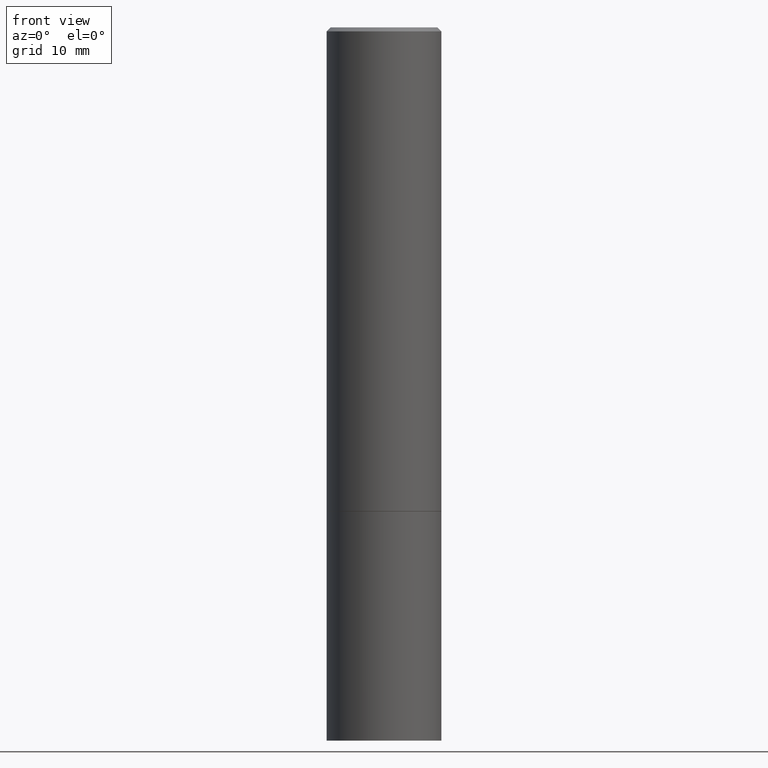
[diagram: clean part render]
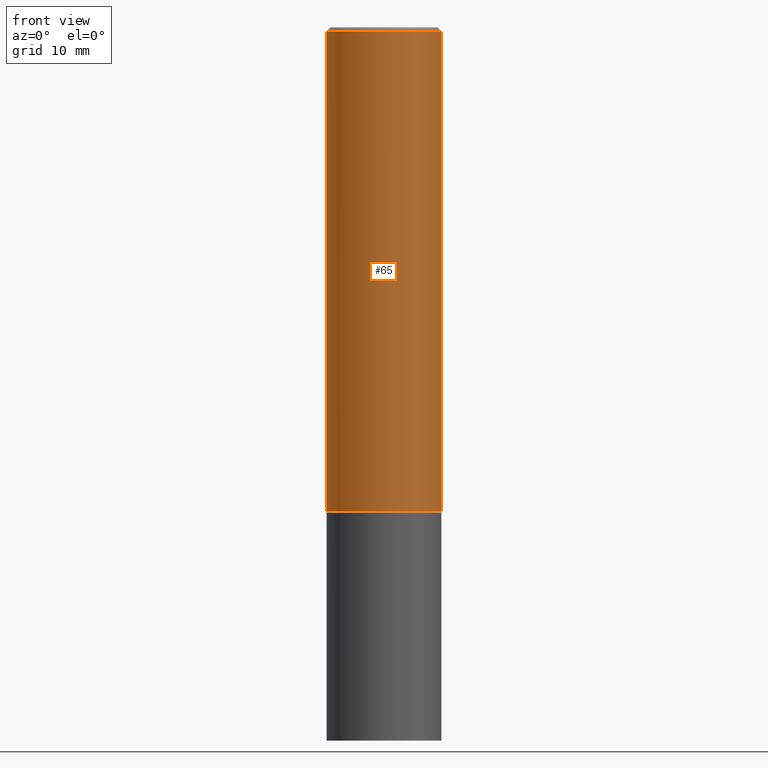
[diagram: same view with one face highlighted and labeled with its STEP entity id]
A machine part, front view. The second image highlights one B-rep face of the part: STEP entity #65.
In plain terms, the highlighted cylindrical surface (partial cylindrical patch) has radius 7.1437 mm, axis along (-0, 0, 1).
Its self-contained STEP definition (entity closure, byte-faithful):
#2 = DIRECTION ( 'NONE',  ( -2.445468806185136597E-29, 3.491481338843145583E-15, 1.000000000000000000 ) ) ;
#5 = DIRECTION ( 'NONE',  ( 1.000000000000000000, -6.982962677686268288E-15, 0.000000000000000000 ) ) ;
#13 = EDGE_CURVE ( 'NONE', #333, #43, #327, .T. ) ;
#43 = VERTEX_POINT ( 'NONE', #184 ) ;
#59 = CARTESIAN_POINT ( 'NONE',  ( 4.890937612370292426E-31, -6.982962677686317493E-17, -0.02000000000000007674 ) ) ;
#65 = ADVANCED_FACE ( 'NONE', ( #285 ), #145, .T. ) ;
#69 = EDGE_CURVE ( 'NONE', #333, #296, #84, .T. ) ;
#77 = ORIENTED_EDGE ( 'NONE', *, *, #13, .T. ) ;
#78 = CARTESIAN_POINT ( 'NONE',  ( 5.805542945883512693E-29, -8.288776698413625533E-15, -2.373999999999999222 ) ) ;
#81 = EDGE_CURVE ( 'NONE', #296, #129, #304, .T. ) ;
#84 = LINE ( 'NONE', #254, #121 ) ;
#89 = CARTESIAN_POINT ( 'NONE',  ( 0.2812499999999996114, -1.999344688650103789E-15, -0.02000000000000007674 ) ) ;
#110 = AXIS2_PLACEMENT_3D ( 'NONE', #59, #2, #5 ) ;
#121 = VECTOR ( 'NONE', #251, 39.37007874015748143 ) ;
#124 = AXIS2_PLACEMENT_3D ( 'NONE', #257, #281, #282 ) ;
#127 = ORIENTED_EDGE ( 'NONE', *, *, #69, .F. ) ;
#129 = VERTEX_POINT ( 'NONE', #89 ) ;
#145 = CYLINDRICAL_SURFACE ( 'NONE', #124, 0.2812499999999998335 ) ;
#150 = EDGE_CURVE ( 'NONE', #43, #129, #277, .T. ) ;
#155 = DIRECTION ( 'NONE',  ( -2.445468806185136597E-29, 3.491481338843145583E-15, 1.000000000000000000 ) ) ;
#158 = ORIENTED_EDGE ( 'NONE', *, *, #81, .F. ) ;
#159 = CARTESIAN_POINT ( 'NONE',  ( -0.2812499999999996114, 1.894128626322396848E-15, -0.02000000000000007674 ) ) ;
#184 = CARTESIAN_POINT ( 'NONE',  ( 0.2812500000000000555, -1.025273495151288883E-14, -2.373999999999999222 ) ) ;
#186 = DIRECTION ( 'NONE',  ( 1.000000000000000000, -6.982962677686268288E-15, 0.000000000000000000 ) ) ;
#188 = DIRECTION ( 'NONE',  ( -2.445468806185136877E-29, 3.491481338843145188E-15, 1.000000000000000000 ) ) ;
#224 = VECTOR ( 'NONE', #188, 39.37007874015748143 ) ;
#228 = ORIENTED_EDGE ( 'NONE', *, *, #150, .T. ) ;
#251 = DIRECTION ( 'NONE',  ( -2.445468806185136877E-29, 3.491481338843145188E-15, 1.000000000000000000 ) ) ;
#254 = CARTESIAN_POINT ( 'NONE',  ( -0.2812499999999998335, 1.998401444325280589E-15, -1.383450494134191428E-29 ) ) ;
#257 = CARTESIAN_POINT ( 'NONE',  ( 0.000000000000000000, 0.000000000000000000, 0.000000000000000000 ) ) ;
#270 = EDGE_LOOP ( 'NONE', ( #127, #77, #228, #158 ) ) ;
#277 = LINE ( 'NONE', #307, #224 ) ;
#281 = DIRECTION ( 'NONE',  ( -2.445468806185136597E-29, 3.491481338843145583E-15, 1.000000000000000000 ) ) ;
#282 = DIRECTION ( 'NONE',  ( 1.000000000000000000, -6.982962677686266711E-15, 4.876176775795935793E-29 ) ) ;
#284 = AXIS2_PLACEMENT_3D ( 'NONE', #78, #155, #186 ) ;
#285 = FACE_OUTER_BOUND ( 'NONE', #270, .T. ) ;
#296 = VERTEX_POINT ( 'NONE', #159 ) ;
#304 = CIRCLE ( 'NONE', #110, 0.2812499999999996114 ) ;
#307 = CARTESIAN_POINT ( 'NONE',  ( 0.2812499999999998335, -1.963958253099261329E-15, 1.371424718192606171E-29 ) ) ;
#327 = CIRCLE ( 'NONE', #284, 0.2812500000000000555 ) ;
#333 = VERTEX_POINT ( 'NONE', #338 ) ;
#338 = CARTESIAN_POINT ( 'NONE',  ( -0.2812500000000000000, -2.180901718269959487E-15, -2.373999999999999222 ) ) ;